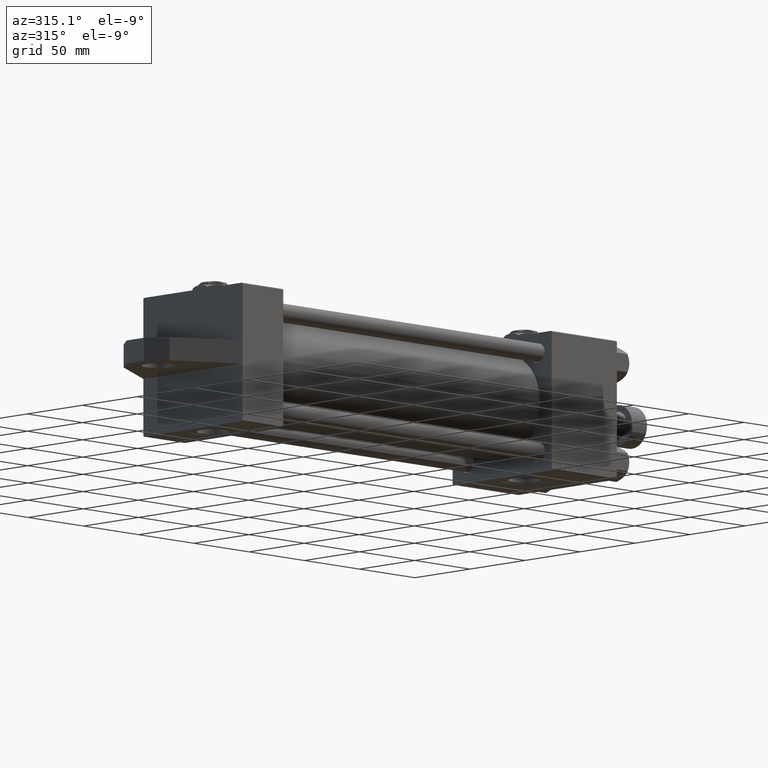
[diagram: clean part render]
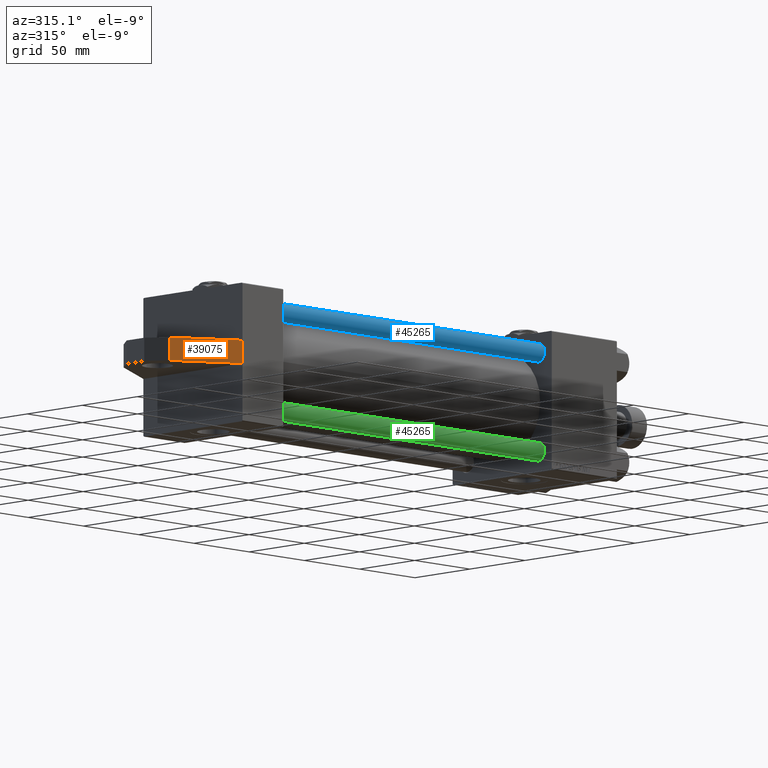
[diagram: same view with three faces highlighted in distinct colors, each labeled with its STEP entity id]
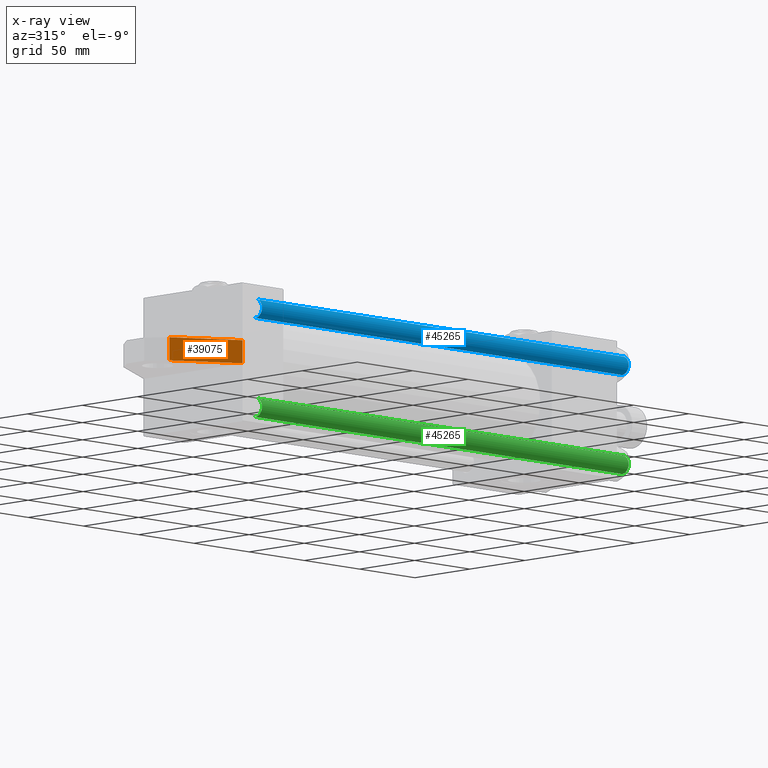
[diagram: x-ray of the same camera — body ghosted, the three highlighted faces saturated]
A machine part, auxiliary view with three faces highlighted in distinct colors.
The next image is the same camera in x-ray (body ghosted, the three faces saturated) — at least one of them is partly hidden behind the body in this view.
Their STEP definitions:

[orange] entity #39075 — the highlighted planar face has unit normal (-0.5, -0.866, 0).
#5238 = EDGE_CURVE ( 'NONE', #20110, #10744, #25689, .T. ) ;
#5832 = VECTOR ( 'NONE', #10596, 1000.000000000000000 ) ;
#7746 = DIRECTION ( 'NONE',  ( 0.8660254037844363761, 0.000000000000000000, 0.5000000000000041078 ) ) ;
#9840 = ORIENTED_EDGE ( 'NONE', *, *, #5238, .T. ) ;
#10551 = ORIENTED_EDGE ( 'NONE', *, *, #43905, .T. ) ;
#10596 = DIRECTION ( 'NONE',  ( 0.8660254037844363761, 0.000000000000000000, 0.5000000000000041078 ) ) ;
#10744 = VERTEX_POINT ( 'NONE', #36832 ) ;
#13507 = EDGE_CURVE ( 'NONE', #43510, #36781, #40095, .T. ) ;
#14254 = FACE_OUTER_BOUND ( 'NONE', #21673, .T. ) ;
#15166 = DIRECTION ( 'NONE',  ( 0.000000000000000000, 1.000000000000000000, 0.000000000000000000 ) ) ;
#15400 = LINE ( 'NONE', #27447, #36900 ) ;
#17454 = DIRECTION ( 'NONE',  ( -0.5000000000000041078, 0.000000000000000000, 0.8660254037844363761 ) ) ;
#20110 = VERTEX_POINT ( 'NONE', #32275 ) ;
#20977 = CARTESIAN_POINT ( 'NONE',  ( -42.00000000000000000, 7.500000000000000000, 20.75128869403545551 ) ) ;
#21673 = EDGE_LOOP ( 'NONE', ( #37799, #32741, #9840, #10551 ) ) ;
#22731 = AXIS2_PLACEMENT_3D ( 'NONE', #29008, #17454, #32448 ) ;
#23652 = VECTOR ( 'NONE', #42318, 1000.000000000000000 ) ;
#25689 = LINE ( 'NONE', #40688, #33909 ) ;
#27447 = CARTESIAN_POINT ( 'NONE',  ( -42.00000000000000000, -7.500000000000000000, 20.75128869403545551 ) ) ;
#29008 = CARTESIAN_POINT ( 'NONE',  ( -42.00000000000000000, -7.500000000000000000, 20.75128869403545551 ) ) ;
#30770 = LINE ( 'NONE', #45747, #23652 ) ;
#32275 = CARTESIAN_POINT ( 'NONE',  ( -42.00000000000000000, -7.500000000000000000, 20.75128869403545551 ) ) ;
#32448 = DIRECTION ( 'NONE',  ( 0.8660254037844363761, 0.000000000000000000, 0.5000000000000041078 ) ) ;
#32741 = ORIENTED_EDGE ( 'NONE', *, *, #40524, .F. ) ;
#33161 = PLANE ( 'NONE',  #22731 ) ;
#33909 = VECTOR ( 'NONE', #7746, 1000.000000000000000 ) ;
#36781 = VERTEX_POINT ( 'NONE', #46586 ) ;
#36832 = CARTESIAN_POINT ( 'NONE',  ( 0.000000000000000000, -7.500000000000000000, 45.00000000000000000 ) ) ;
#36884 = CARTESIAN_POINT ( 'NONE',  ( -42.00000000000000000, 7.500000000000000000, 20.75128869403545551 ) ) ;
#36900 = VECTOR ( 'NONE', #15166, 1000.000000000000000 ) ;
#37799 = ORIENTED_EDGE ( 'NONE', *, *, #13507, .F. ) ;
#39075 = ADVANCED_FACE ( 'NONE', ( #14254 ), #33161, .T. ) ;
#40095 = LINE ( 'NONE', #36884, #5832 ) ;
#40524 = EDGE_CURVE ( 'NONE', #20110, #43510, #15400, .T. ) ;
#40688 = CARTESIAN_POINT ( 'NONE',  ( -42.00000000000000000, -7.500000000000000000, 20.75128869403545551 ) ) ;
#42318 = DIRECTION ( 'NONE',  ( 0.000000000000000000, 1.000000000000000000, 0.000000000000000000 ) ) ;
#43510 = VERTEX_POINT ( 'NONE', #20977 ) ;
#43905 = EDGE_CURVE ( 'NONE', #10744, #36781, #30770, .T. ) ;
#45747 = CARTESIAN_POINT ( 'NONE',  ( 0.000000000000000000, -7.500000000000000000, 45.00000000000000000 ) ) ;
#46586 = CARTESIAN_POINT ( 'NONE',  ( 0.000000000000000000, 7.500000000000000000, 45.00000000000000000 ) ) ;

[blue] entity #45265 — the highlighted cylindrical surface (edge-blend (fillet) strip) has radius 6 mm, axis along (1, 0, 0).
#1076 = VERTEX_POINT ( 'NONE', #35314 ) ;
#1463 = CARTESIAN_POINT ( 'NONE',  ( 0.000000000000000000, 0.000000000000000000, 332.5000000000001137 ) ) ;
#2772 = AXIS2_PLACEMENT_3D ( 'NONE', #1463, #12754, #20367 ) ;
#3001 = VECTOR ( 'NONE', #25786, 1000.000000000000000 ) ;
#4301 = ORIENTED_EDGE ( 'NONE', *, *, #9823, .T. ) ;
#4344 = VERTEX_POINT ( 'NONE', #34554 ) ;
#7331 = CYLINDRICAL_SURFACE ( 'NONE', #37849, 6.000000000000000888 ) ;
#9823 = EDGE_CURVE ( 'NONE', #17462, #13408, #32902, .T. ) ;
#11008 = DIRECTION ( 'NONE',  ( -0.000000000000000000, -0.000000000000000000, -1.000000000000000000 ) ) ;
#12754 = DIRECTION ( 'NONE',  ( 0.000000000000000000, 0.000000000000000000, -1.000000000000000000 ) ) ;
#13408 = VERTEX_POINT ( 'NONE', #20938 ) ;
#13918 = AXIS2_PLACEMENT_3D ( 'NONE', #17952, #32465, #28296 ) ;
#14221 = DIRECTION ( 'NONE',  ( -1.000000000000000000, 0.000000000000000000, 0.000000000000000000 ) ) ;
#15650 = EDGE_CURVE ( 'NONE', #4344, #17462, #23955, .T. ) ;
#17462 = VERTEX_POINT ( 'NONE', #41276 ) ;
#17952 = CARTESIAN_POINT ( 'NONE',  ( 0.000000000000000000, 0.000000000000000000, 0.5000000000000004441 ) ) ;
#18397 = EDGE_LOOP ( 'NONE', ( #38426, #4301, #44717, #29377 ) ) ;
#19131 = CARTESIAN_POINT ( 'NONE',  ( -6.000000000000000888, 0.000000000000000000, 333.0000000000000000 ) ) ;
#20367 = DIRECTION ( 'NONE',  ( 1.000000000000000000, 0.000000000000000000, 0.000000000000000000 ) ) ;
#20938 = CARTESIAN_POINT ( 'NONE',  ( 6.000000000000000888, 7.347880794884120722E-16, 0.5000000000000004441 ) ) ;
#23955 = CIRCLE ( 'NONE', #2772, 6.000000000000000888 ) ;
#25786 = DIRECTION ( 'NONE',  ( -0.000000000000000000, -0.000000000000000000, -1.000000000000000000 ) ) ;
#28296 = DIRECTION ( 'NONE',  ( 1.000000000000000000, 0.000000000000000000, 0.000000000000000000 ) ) ;
#29377 = ORIENTED_EDGE ( 'NONE', *, *, #35413, .F. ) ;
#30151 = EDGE_CURVE ( 'NONE', #13408, #1076, #38220, .T. ) ;
#32465 = DIRECTION ( 'NONE',  ( -0.000000000000000000, -0.000000000000000000, 1.000000000000000000 ) ) ;
#32902 = LINE ( 'NONE', #41252, #40348 ) ;
#34554 = CARTESIAN_POINT ( 'NONE',  ( -6.000000000000000888, 0.000000000000000000, 332.5000000000001137 ) ) ;
#35314 = CARTESIAN_POINT ( 'NONE',  ( -6.000000000000000888, 0.000000000000000000, 0.5000000000000004441 ) ) ;
#35413 = EDGE_CURVE ( 'NONE', #4344, #1076, #45423, .T. ) ;
#37780 = FACE_OUTER_BOUND ( 'NONE', #18397, .T. ) ;
#37849 = AXIS2_PLACEMENT_3D ( 'NONE', #40515, #11008, #14221 ) ;
#38220 = CIRCLE ( 'NONE', #13918, 6.000000000000000888 ) ;
#38426 = ORIENTED_EDGE ( 'NONE', *, *, #15650, .T. ) ;
#40348 = VECTOR ( 'NONE', #48380, 1000.000000000000000 ) ;
#40515 = CARTESIAN_POINT ( 'NONE',  ( 0.000000000000000000, 0.000000000000000000, 333.0000000000000000 ) ) ;
#41252 = CARTESIAN_POINT ( 'NONE',  ( 6.000000000000000888, 7.347880794884120722E-16, 333.0000000000000000 ) ) ;
#41276 = CARTESIAN_POINT ( 'NONE',  ( 6.000000000000000888, 7.347880794884120722E-16, 332.5000000000001137 ) ) ;
#44717 = ORIENTED_EDGE ( 'NONE', *, *, #30151, .T. ) ;
#45265 = ADVANCED_FACE ( 'NONE', ( #37780 ), #7331, .T. ) ;
#45423 = LINE ( 'NONE', #19131, #3001 ) ;
#48380 = DIRECTION ( 'NONE',  ( -0.000000000000000000, -0.000000000000000000, -1.000000000000000000 ) ) ;

[green] entity #45265 — the highlighted cylindrical surface (edge-blend (fillet) strip) has radius 6 mm, axis along (-1, -0, 0).
#1076 = VERTEX_POINT ( 'NONE', #35314 ) ;
#1463 = CARTESIAN_POINT ( 'NONE',  ( 0.000000000000000000, 0.000000000000000000, 332.5000000000001137 ) ) ;
#2772 = AXIS2_PLACEMENT_3D ( 'NONE', #1463, #12754, #20367 ) ;
#3001 = VECTOR ( 'NONE', #25786, 1000.000000000000000 ) ;
#4301 = ORIENTED_EDGE ( 'NONE', *, *, #9823, .T. ) ;
#4344 = VERTEX_POINT ( 'NONE', #34554 ) ;
#7331 = CYLINDRICAL_SURFACE ( 'NONE', #37849, 6.000000000000000888 ) ;
#9823 = EDGE_CURVE ( 'NONE', #17462, #13408, #32902, .T. ) ;
#11008 = DIRECTION ( 'NONE',  ( -0.000000000000000000, -0.000000000000000000, -1.000000000000000000 ) ) ;
#12754 = DIRECTION ( 'NONE',  ( 0.000000000000000000, 0.000000000000000000, -1.000000000000000000 ) ) ;
#13408 = VERTEX_POINT ( 'NONE', #20938 ) ;
#13918 = AXIS2_PLACEMENT_3D ( 'NONE', #17952, #32465, #28296 ) ;
#14221 = DIRECTION ( 'NONE',  ( -1.000000000000000000, 0.000000000000000000, 0.000000000000000000 ) ) ;
#15650 = EDGE_CURVE ( 'NONE', #4344, #17462, #23955, .T. ) ;
#17462 = VERTEX_POINT ( 'NONE', #41276 ) ;
#17952 = CARTESIAN_POINT ( 'NONE',  ( 0.000000000000000000, 0.000000000000000000, 0.5000000000000004441 ) ) ;
#18397 = EDGE_LOOP ( 'NONE', ( #38426, #4301, #44717, #29377 ) ) ;
#19131 = CARTESIAN_POINT ( 'NONE',  ( -6.000000000000000888, 0.000000000000000000, 333.0000000000000000 ) ) ;
#20367 = DIRECTION ( 'NONE',  ( 1.000000000000000000, 0.000000000000000000, 0.000000000000000000 ) ) ;
#20938 = CARTESIAN_POINT ( 'NONE',  ( 6.000000000000000888, 7.347880794884120722E-16, 0.5000000000000004441 ) ) ;
#23955 = CIRCLE ( 'NONE', #2772, 6.000000000000000888 ) ;
#25786 = DIRECTION ( 'NONE',  ( -0.000000000000000000, -0.000000000000000000, -1.000000000000000000 ) ) ;
#28296 = DIRECTION ( 'NONE',  ( 1.000000000000000000, 0.000000000000000000, 0.000000000000000000 ) ) ;
#29377 = ORIENTED_EDGE ( 'NONE', *, *, #35413, .F. ) ;
#30151 = EDGE_CURVE ( 'NONE', #13408, #1076, #38220, .T. ) ;
#32465 = DIRECTION ( 'NONE',  ( -0.000000000000000000, -0.000000000000000000, 1.000000000000000000 ) ) ;
#32902 = LINE ( 'NONE', #41252, #40348 ) ;
#34554 = CARTESIAN_POINT ( 'NONE',  ( -6.000000000000000888, 0.000000000000000000, 332.5000000000001137 ) ) ;
#35314 = CARTESIAN_POINT ( 'NONE',  ( -6.000000000000000888, 0.000000000000000000, 0.5000000000000004441 ) ) ;
#35413 = EDGE_CURVE ( 'NONE', #4344, #1076, #45423, .T. ) ;
#37780 = FACE_OUTER_BOUND ( 'NONE', #18397, .T. ) ;
#37849 = AXIS2_PLACEMENT_3D ( 'NONE', #40515, #11008, #14221 ) ;
#38220 = CIRCLE ( 'NONE', #13918, 6.000000000000000888 ) ;
#38426 = ORIENTED_EDGE ( 'NONE', *, *, #15650, .T. ) ;
#40348 = VECTOR ( 'NONE', #48380, 1000.000000000000000 ) ;
#40515 = CARTESIAN_POINT ( 'NONE',  ( 0.000000000000000000, 0.000000000000000000, 333.0000000000000000 ) ) ;
#41252 = CARTESIAN_POINT ( 'NONE',  ( 6.000000000000000888, 7.347880794884120722E-16, 333.0000000000000000 ) ) ;
#41276 = CARTESIAN_POINT ( 'NONE',  ( 6.000000000000000888, 7.347880794884120722E-16, 332.5000000000001137 ) ) ;
#44717 = ORIENTED_EDGE ( 'NONE', *, *, #30151, .T. ) ;
#45265 = ADVANCED_FACE ( 'NONE', ( #37780 ), #7331, .T. ) ;
#45423 = LINE ( 'NONE', #19131, #3001 ) ;
#48380 = DIRECTION ( 'NONE',  ( -0.000000000000000000, -0.000000000000000000, -1.000000000000000000 ) ) ;